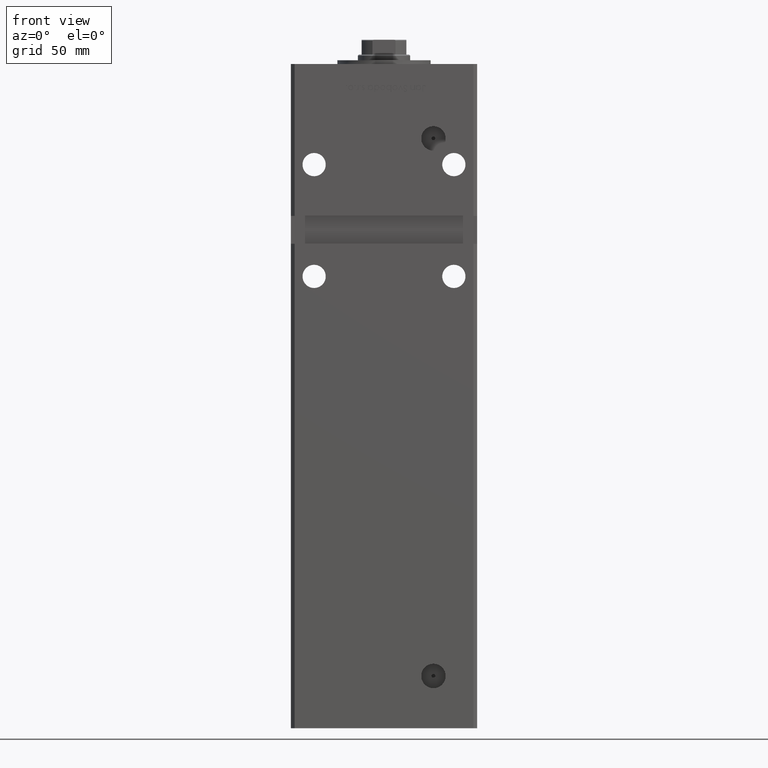
[diagram: clean part render]
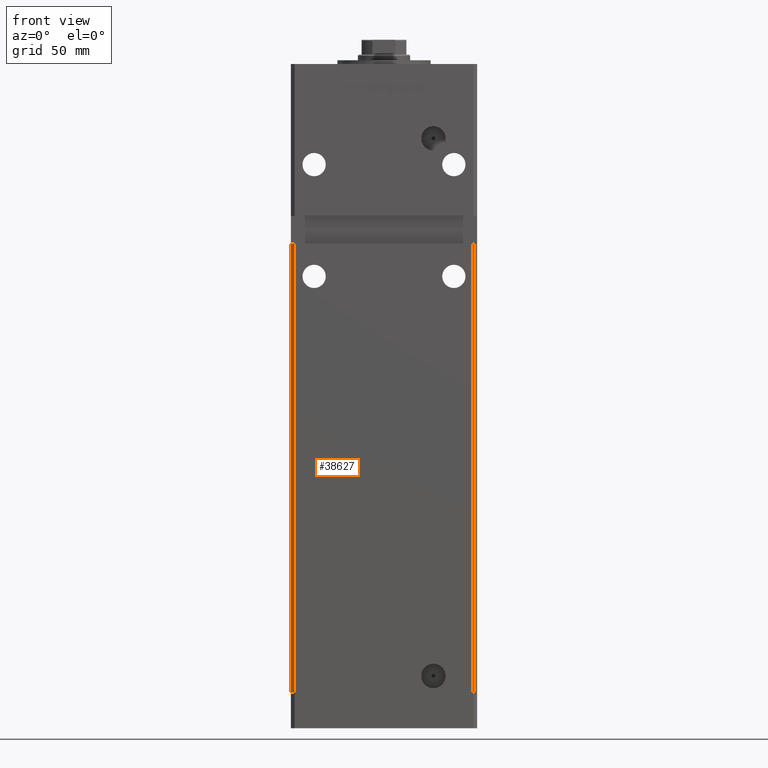
[diagram: same view with one face highlighted and labeled with its STEP entity id]
A machine part, front view. The second image highlights one B-rep face of the part: STEP entity #38627.
In plain terms, the highlighted planar face has unit normal (0.7071, 0.7071, 0).
Its self-contained STEP definition (entity closure, byte-faithful):
#3422 = CARTESIAN_POINT ( 'NONE',  ( -47.99999999999998579, -43.50000000000000000, 318.5000000000000000 ) ) ;
#5197 = VECTOR ( 'NONE', #25801, 1000.000000000000114 ) ;
#6026 = EDGE_CURVE ( 'NONE', #20550, #17087, #19009, .T. ) ;
#7294 = ORIENTED_EDGE ( 'NONE', *, *, #44930, .F. ) ;
#7391 = FACE_OUTER_BOUND ( 'NONE', #35281, .T. ) ;
#7583 = AXIS2_PLACEMENT_3D ( 'NONE', #15963, #24318, #40718 ) ;
#10378 = LINE ( 'NONE', #26792, #11111 ) ;
#11111 = VECTOR ( 'NONE', #46698, 1000.000000000000000 ) ;
#14963 = CARTESIAN_POINT ( 'NONE',  ( -49.99999999999998579, -41.49999999999999289, 241.0000000000000000 ) ) ;
#15963 = CARTESIAN_POINT ( 'NONE',  ( -49.99999999999998579, -41.49999999999999289, 318.5000000000000000 ) ) ;
#16764 = PLANE ( 'NONE',  #7583 ) ;
#17087 = VERTEX_POINT ( 'NONE', #43626 ) ;
#18747 = DIRECTION ( 'NONE',  ( -0.000000000000000000, -0.000000000000000000, -1.000000000000000000 ) ) ;
#18985 = LINE ( 'NONE', #40217, #47869 ) ;
#19009 = LINE ( 'NONE', #14963, #5197 ) ;
#20550 = VERTEX_POINT ( 'NONE', #41201 ) ;
#23843 = LINE ( 'NONE', #3422, #26657 ) ;
#24318 = DIRECTION ( 'NONE',  ( 0.7071067811865475727, 0.7071067811865475727, -0.000000000000000000 ) ) ;
#25801 = DIRECTION ( 'NONE',  ( -0.7071067811865474617, 0.7071067811865474617, 0.000000000000000000 ) ) ;
#26565 = ORIENTED_EDGE ( 'NONE', *, *, #6026, .T. ) ;
#26657 = VECTOR ( 'NONE', #18747, 1000.000000000000000 ) ;
#26792 = CARTESIAN_POINT ( 'NONE',  ( -49.99999999999998579, -41.49999999999999289, 318.5000000000000000 ) ) ;
#32379 = VERTEX_POINT ( 'NONE', #36278 ) ;
#32548 = ORIENTED_EDGE ( 'NONE', *, *, #36807, .T. ) ;
#35281 = EDGE_LOOP ( 'NONE', ( #7294, #26565, #36413, #32548 ) ) ;
#36278 = CARTESIAN_POINT ( 'NONE',  ( -47.99999999999998579, -43.50000000000000000, 0.000000000000000000 ) ) ;
#36413 = ORIENTED_EDGE ( 'NONE', *, *, #43124, .T. ) ;
#36807 = EDGE_CURVE ( 'NONE', #44269, #32379, #18985, .T. ) ;
#38627 = ADVANCED_FACE ( 'NONE', ( #7391 ), #16764, .F. ) ;
#40217 = CARTESIAN_POINT ( 'NONE',  ( -49.99999999999998579, -41.49999999999999289, 0.000000000000000000 ) ) ;
#40718 = DIRECTION ( 'NONE',  ( -0.7071067811865474617, 0.7071067811865474617, 0.000000000000000000 ) ) ;
#41201 = CARTESIAN_POINT ( 'NONE',  ( -47.99999999999998579, -43.50000000000000000, 241.0000000000000000 ) ) ;
#43124 = EDGE_CURVE ( 'NONE', #17087, #44269, #10378, .T. ) ;
#43626 = CARTESIAN_POINT ( 'NONE',  ( -49.99999999999998579, -41.49999999999999289, 241.0000000000000000 ) ) ;
#44269 = VERTEX_POINT ( 'NONE', #52205 ) ;
#44778 = DIRECTION ( 'NONE',  ( 0.7071067811865474617, -0.7071067811865474617, 0.000000000000000000 ) ) ;
#44930 = EDGE_CURVE ( 'NONE', #20550, #32379, #23843, .T. ) ;
#46698 = DIRECTION ( 'NONE',  ( -0.000000000000000000, -0.000000000000000000, -1.000000000000000000 ) ) ;
#47869 = VECTOR ( 'NONE', #44778, 1000.000000000000114 ) ;
#52205 = CARTESIAN_POINT ( 'NONE',  ( -49.99999999999998579, -41.49999999999999289, 0.000000000000000000 ) ) ;